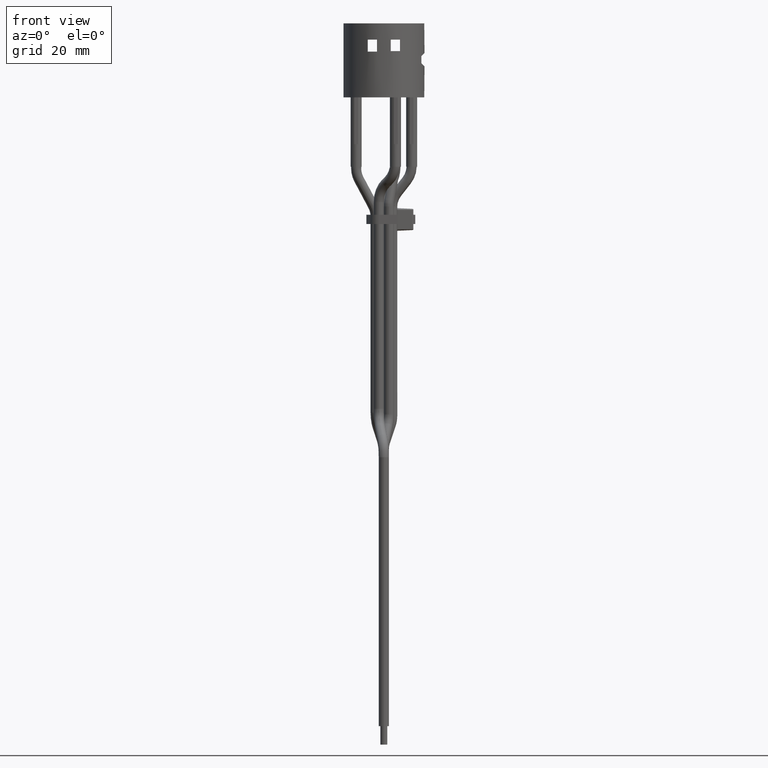
[diagram: clean part render]
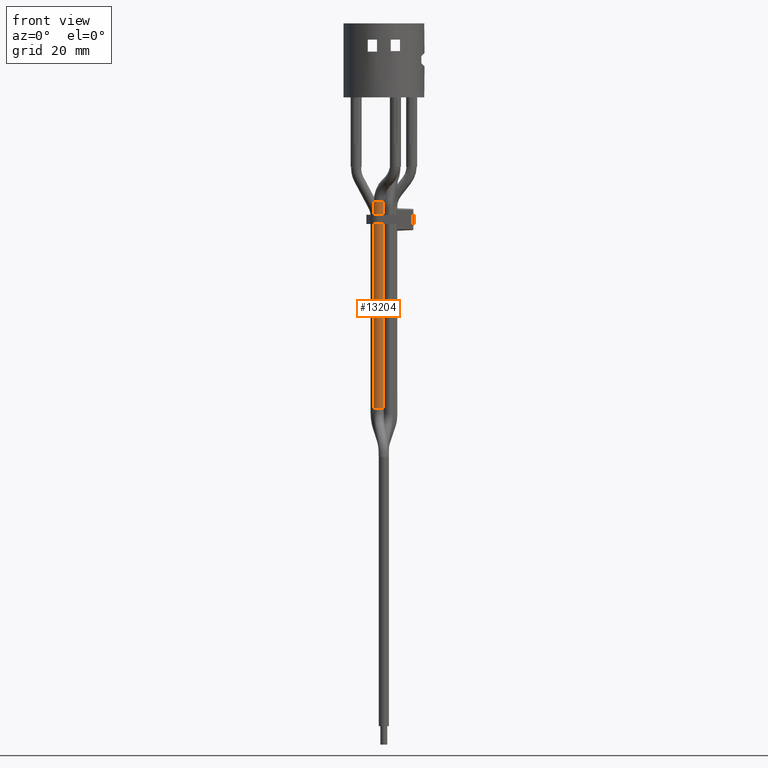
[diagram: same view with one face highlighted and labeled with its STEP entity id]
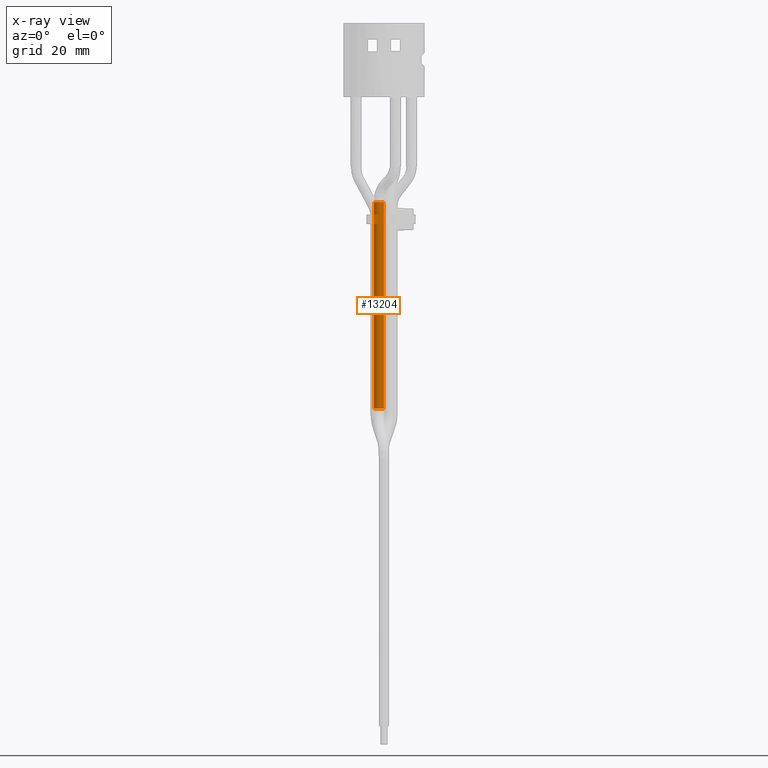
[diagram: x-ray of the same camera — body ghosted, the highlighted face saturated]
A machine part, front view. The second image highlights one B-rep face of the part: STEP entity #13204.
The next image is the same camera in x-ray: the body ghosted, the highlighted face saturated — about 0% of this face is hidden behind the body in this view.
In plain terms, the highlighted cylindrical surface (bore or boss wall) has radius 1.1 mm, axis along (-0, 0, -1).
Its self-contained STEP definition (entity closure, byte-faithful):
#443=CIRCLE('',#13758,1.1);
#451=CIRCLE('',#13782,1.1);
#615=CIRCLE('',#14106,1.1);
#616=CIRCLE('',#14107,1.1);
#624=CIRCLE('',#14119,1.1);
#625=CIRCLE('',#14120,1.1);
#723=CYLINDRICAL_SURFACE('',#14118,1.1);
#1374=FACE_OUTER_BOUND('',#2089,.T.);
#2089=EDGE_LOOP('',(#11929,#11930,#11931,#11932,#11933,#11934,#11935,#11936,
#11937,#11938,#11939,#11940));
#3371=LINE('',#21193,#4833);
#3383=LINE('',#21226,#4845);
#3563=LINE('',#22917,#5025);
#3564=LINE('',#22919,#5026);
#4833=VECTOR('',#16502,10.);
#4845=VECTOR('',#16532,10.);
#5025=VECTOR('',#17396,1.1);
#5026=VECTOR('',#17397,1.1);
#6003=VERTEX_POINT('',#21131);
#6004=VERTEX_POINT('',#21133);
#6022=VERTEX_POINT('',#21191);
#6034=VERTEX_POINT('',#21225);
#6261=VERTEX_POINT('',#22756);
#6262=VERTEX_POINT('',#22758);
#6272=VERTEX_POINT('',#22918);
#6273=VERTEX_POINT('',#22920);
#7729=EDGE_CURVE('',#6004,#6003,#443,.T.);
#7754=EDGE_CURVE('',#6022,#6003,#3371,.T.);
#7770=EDGE_CURVE('',#6034,#6004,#3383,.T.);
#7788=EDGE_CURVE('',#6022,#6034,#451,.T.);
#8155=EDGE_CURVE('',#6261,#6262,#615,.T.);
#8156=EDGE_CURVE('',#6262,#6261,#616,.T.);
#8171=EDGE_CURVE('',#6262,#6004,#3563,.T.);
#8172=EDGE_CURVE('',#6034,#6272,#3564,.T.);
#8173=EDGE_CURVE('',#6272,#6273,#624,.T.);
#8174=EDGE_CURVE('',#6273,#6272,#625,.T.);
#11929=ORIENTED_EDGE('',*,*,#8156,.F.);
#11930=ORIENTED_EDGE('',*,*,#8171,.T.);
#11931=ORIENTED_EDGE('',*,*,#7729,.T.);
#11932=ORIENTED_EDGE('',*,*,#7754,.F.);
#11933=ORIENTED_EDGE('',*,*,#7788,.T.);
#11934=ORIENTED_EDGE('',*,*,#8172,.T.);
#11935=ORIENTED_EDGE('',*,*,#8173,.T.);
#11936=ORIENTED_EDGE('',*,*,#8174,.T.);
#11937=ORIENTED_EDGE('',*,*,#8172,.F.);
#11938=ORIENTED_EDGE('',*,*,#7770,.T.);
#11939=ORIENTED_EDGE('',*,*,#8171,.F.);
#11940=ORIENTED_EDGE('',*,*,#8155,.F.);
#13204=ADVANCED_FACE('',(#1374),#723,.T.);
#13758=AXIS2_PLACEMENT_3D('',#21134,#16463,#16464);
#13782=AXIS2_PLACEMENT_3D('',#21294,#16556,#16557);
#14106=AXIS2_PLACEMENT_3D('',#22759,#17368,#17369);
#14107=AXIS2_PLACEMENT_3D('',#22760,#17370,#17371);
#14118=AXIS2_PLACEMENT_3D('',#22916,#17394,#17395);
#14119=AXIS2_PLACEMENT_3D('',#22921,#17398,#17399);
#14120=AXIS2_PLACEMENT_3D('',#22922,#17400,#17401);
#16463=DIRECTION('center_axis',(4.89801263142938E-15,1.22323376557195E-14,
-1.));
#16464=DIRECTION('ref_axis',(-4.99672001971652E-15,1.,5.05196216376714E-15));
#16502=DIRECTION('',(-2.0261570199409E-15,5.05196216376713E-15,-1.));
#16532=DIRECTION('',(-2.0261570199409E-15,5.05196216376713E-15,-1.));
#16556=DIRECTION('center_axis',(-4.89801263142938E-15,-1.22323376557195E-14,
1.));
#16557=DIRECTION('ref_axis',(-4.99672001971652E-15,1.,5.05196216376714E-15));
#17368=DIRECTION('center_axis',(-1.91513471747838E-15,4.99645101253587E-15,
-1.));
#17369=DIRECTION('ref_axis',(-4.99672001971652E-15,1.,5.05953186620776E-15));
#17370=DIRECTION('center_axis',(-1.91513471747838E-15,4.99645101253587E-15,
-1.));
#17371=DIRECTION('ref_axis',(-4.99672001971652E-15,1.,5.05953186620776E-15));
#17394=DIRECTION('center_axis',(-2.0261570199409E-15,5.05196216376713E-15,
-1.));
#17395=DIRECTION('ref_axis',(-4.99672001971652E-15,1.,5.05196216376714E-15));
#17396=DIRECTION('',(2.0261570199409E-15,-5.05196216376713E-15,1.));
#17397=DIRECTION('',(2.0261570199409E-15,-5.05196216376713E-15,1.));
#17398=DIRECTION('center_axis',(-1.91513471747838E-15,4.99645101253587E-15,
-1.));
#17399=DIRECTION('ref_axis',(-4.99672001971652E-15,1.,5.05953186620776E-15));
#17400=DIRECTION('center_axis',(-1.91513471747838E-15,4.99645101253587E-15,
-1.));
#17401=DIRECTION('ref_axis',(-4.99672001971652E-15,1.,5.05953186620776E-15));
#21131=CARTESIAN_POINT('',(-2.15119844230282,-1.86087064426504,-27.));
#21133=CARTESIAN_POINT('',(-1.10503627413474,-2.62095195033399,-27.));
#21134=CARTESIAN_POINT('Origin',(-1.10503627430988,-1.52095194942481,-26.9999999999999));
#21191=CARTESIAN_POINT('',(-2.15119844230283,-1.86087064426507,-25.));
#21193=CARTESIAN_POINT('',(-2.15119844255985,-1.86087064347411,-22.2494584103387));
#21225=CARTESIAN_POINT('',(-1.10503627413475,-2.62095195033401,-25.));
#21226=CARTESIAN_POINT('',(-1.10503627402792,-2.62095195033405,-22.2494584103387));
#21294=CARTESIAN_POINT('Origin',(-1.10503627430987,-1.52095194942482,-24.9999999999999));
#22756=CARTESIAN_POINT('',(-0.943077267582517,-2.60896356707392,-66.9672004328272));
#22758=CARTESIAN_POINT('',(-1.10503627430995,-2.62095194942461,-66.9672004328272));
#22759=CARTESIAN_POINT('Origin',(-1.10503627430996,-1.52095194942461,-66.9672004328272));
#22760=CARTESIAN_POINT('Origin',(-1.10503627430996,-1.52095194942461,-66.9672004328272));
#22916=CARTESIAN_POINT('Origin',(-1.10503627430987,-1.52095194942484,-22.2494584103387));
#22917=CARTESIAN_POINT('',(-1.10503627430986,-2.62095194942484,-22.2494584103387));
#22918=CARTESIAN_POINT('',(-1.10503627430986,-2.62095194942484,-22.2494584103387));
#22919=CARTESIAN_POINT('',(-1.10503627430986,-2.62095194942484,-22.2494584103387));
#22920=CARTESIAN_POINT('',(-0.313510742727423,-2.28481537494875,-22.2494584103387));
#22921=CARTESIAN_POINT('Origin',(-1.10503627430987,-1.52095194942484,-22.2494584103387));
#22922=CARTESIAN_POINT('Origin',(-1.10503627430987,-1.52095194942484,-22.2494584103387));